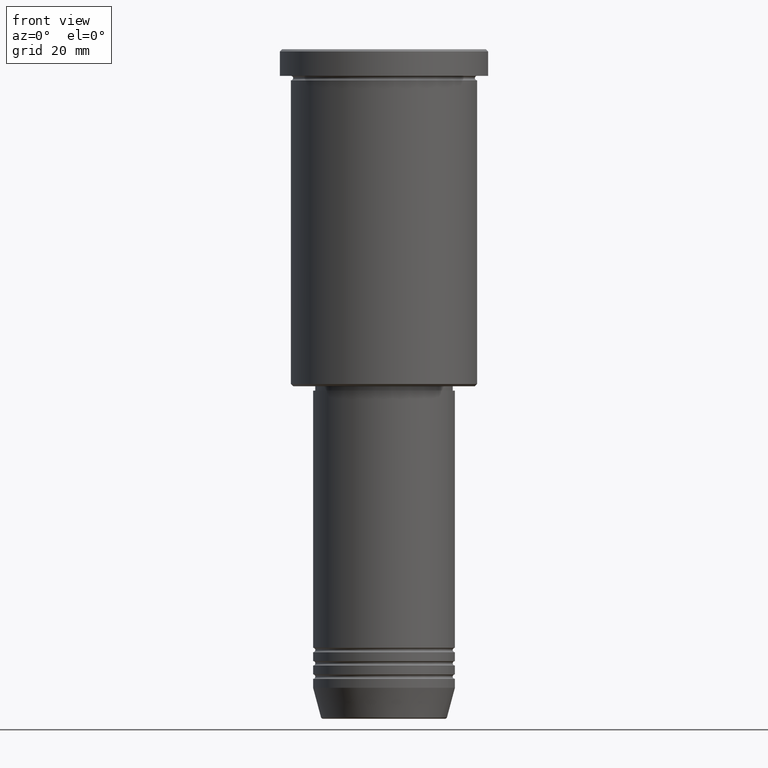
[diagram: clean part render]
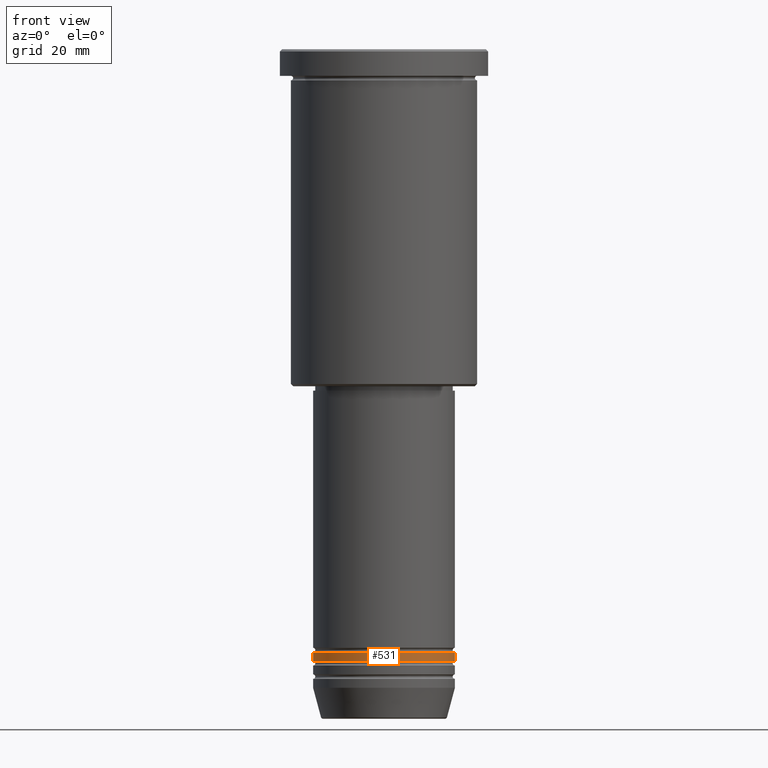
[diagram: same view with one face highlighted and labeled with its STEP entity id]
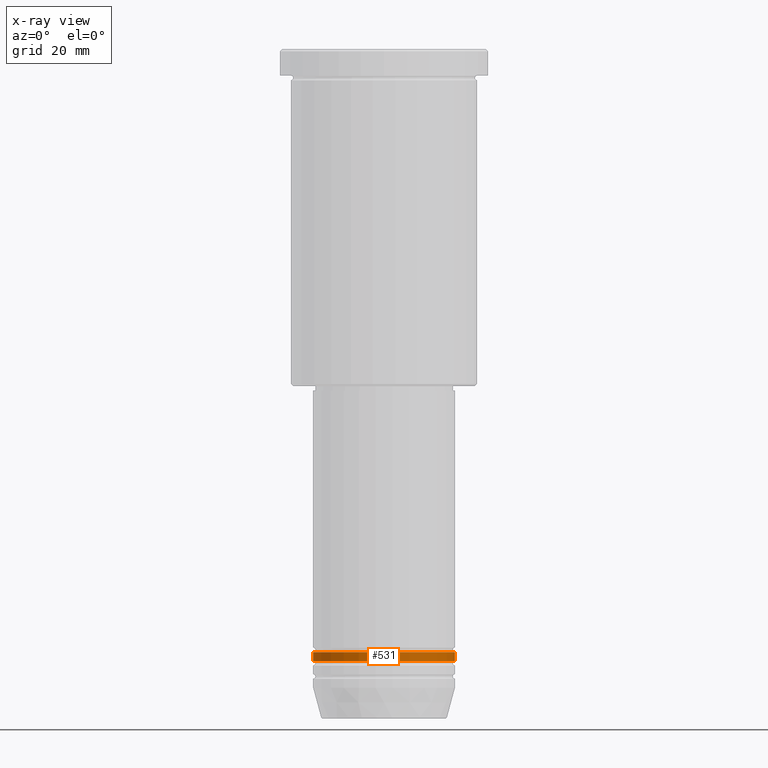
[diagram: x-ray of the same camera — body ghosted, the highlighted face saturated]
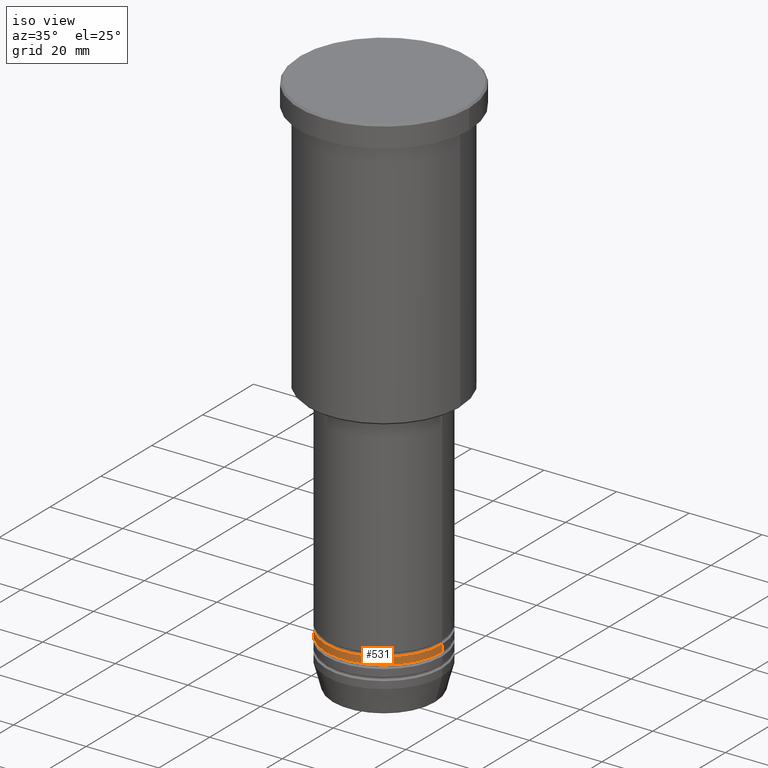
[diagram: same view with one face highlighted and labeled with its STEP entity id]
A machine part, front view. The second image highlights one B-rep face of the part: STEP entity #531.
The next image is the same camera in x-ray: the body ghosted, the highlighted face saturated — about 0% of this face is hidden behind the body in this view.
A second angle (iso view) of the same face is appended — the face is thin or edge-on in the first view.
In plain terms, the highlighted cylindrical surface (partial cylindrical patch) has radius 16 mm, axis along (-0, -0, 1).
Its self-contained STEP definition (entity closure, byte-faithful):
#63 = AXIS2_PLACEMENT_3D ( 'NONE', #209, #825, #503 ) ;
#66 = CARTESIAN_POINT ( 'NONE',  ( 16.00000000000000000, 0.000000000000000000, 0.000000000000000000 ) ) ;
#70 = EDGE_CURVE ( 'NONE', #1128, #925, #303, .T. ) ;
#118 = CARTESIAN_POINT ( 'NONE',  ( -16.00000000000000000, 1.959434878635765131E-15, -135.9999999999999432 ) ) ;
#150 = LINE ( 'NONE', #66, #746 ) ;
#152 = ORIENTED_EDGE ( 'NONE', *, *, #1168, .T. ) ;
#185 = VERTEX_POINT ( 'NONE', #243 ) ;
#204 = DIRECTION ( 'NONE',  ( -0.000000000000000000, -0.000000000000000000, 1.000000000000000000 ) ) ;
#209 = CARTESIAN_POINT ( 'NONE',  ( 0.000000000000000000, 0.000000000000000000, -135.9999999999999432 ) ) ;
#243 = CARTESIAN_POINT ( 'NONE',  ( 16.00000000000000000, 0.000000000000000000, -135.9999999999999432 ) ) ;
#247 = DIRECTION ( 'NONE',  ( -0.000000000000000000, -0.000000000000000000, 1.000000000000000000 ) ) ;
#303 = LINE ( 'NONE', #1024, #643 ) ;
#409 = CARTESIAN_POINT ( 'NONE',  ( -16.00000000000000000, 1.959434878635765131E-15, -137.9999999999999432 ) ) ;
#466 = DIRECTION ( 'NONE',  ( 1.000000000000000000, 0.000000000000000000, 0.000000000000000000 ) ) ;
#473 = AXIS2_PLACEMENT_3D ( 'NONE', #532, #247, #693 ) ;
#503 = DIRECTION ( 'NONE',  ( 1.000000000000000000, 0.000000000000000000, 0.000000000000000000 ) ) ;
#504 = CYLINDRICAL_SURFACE ( 'NONE', #604, 16.00000000000000000 ) ;
#531 = ADVANCED_FACE ( 'NONE', ( #992 ), #504, .T. ) ;
#532 = CARTESIAN_POINT ( 'NONE',  ( 0.000000000000000000, 0.000000000000000000, -137.9999999999999432 ) ) ;
#578 = ORIENTED_EDGE ( 'NONE', *, *, #589, .T. ) ;
#589 = EDGE_CURVE ( 'NONE', #1128, #738, #971, .T. ) ;
#604 = AXIS2_PLACEMENT_3D ( 'NONE', #852, #924, #466 ) ;
#643 = VECTOR ( 'NONE', #204, 1000.000000000000000 ) ;
#693 = DIRECTION ( 'NONE',  ( 1.000000000000000000, 0.000000000000000000, 0.000000000000000000 ) ) ;
#719 = DIRECTION ( 'NONE',  ( -0.000000000000000000, -0.000000000000000000, 1.000000000000000000 ) ) ;
#738 = VERTEX_POINT ( 'NONE', #1094 ) ;
#746 = VECTOR ( 'NONE', #719, 1000.000000000000000 ) ;
#808 = CIRCLE ( 'NONE', #63, 16.00000000000000000 ) ;
#825 = DIRECTION ( 'NONE',  ( -0.000000000000000000, -0.000000000000000000, 1.000000000000000000 ) ) ;
#838 = ORIENTED_EDGE ( 'NONE', *, *, #70, .F. ) ;
#852 = CARTESIAN_POINT ( 'NONE',  ( 0.000000000000000000, 0.000000000000000000, 0.000000000000000000 ) ) ;
#906 = ORIENTED_EDGE ( 'NONE', *, *, #933, .F. ) ;
#924 = DIRECTION ( 'NONE',  ( -0.000000000000000000, -0.000000000000000000, 1.000000000000000000 ) ) ;
#925 = VERTEX_POINT ( 'NONE', #118 ) ;
#933 = EDGE_CURVE ( 'NONE', #925, #185, #808, .T. ) ;
#956 = EDGE_LOOP ( 'NONE', ( #838, #578, #152, #906 ) ) ;
#971 = CIRCLE ( 'NONE', #473, 16.00000000000000000 ) ;
#992 = FACE_OUTER_BOUND ( 'NONE', #956, .T. ) ;
#1024 = CARTESIAN_POINT ( 'NONE',  ( -16.00000000000000000, 1.959434878635765131E-15, 0.000000000000000000 ) ) ;
#1094 = CARTESIAN_POINT ( 'NONE',  ( 16.00000000000000000, 0.000000000000000000, -137.9999999999999432 ) ) ;
#1128 = VERTEX_POINT ( 'NONE', #409 ) ;
#1168 = EDGE_CURVE ( 'NONE', #738, #185, #150, .T. ) ;